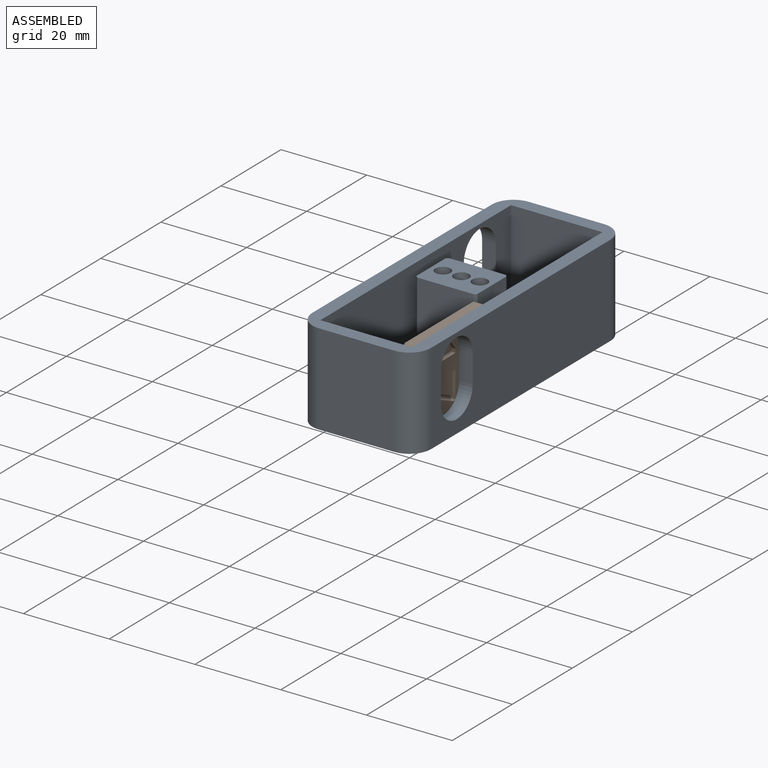
[diagram: assembled view]
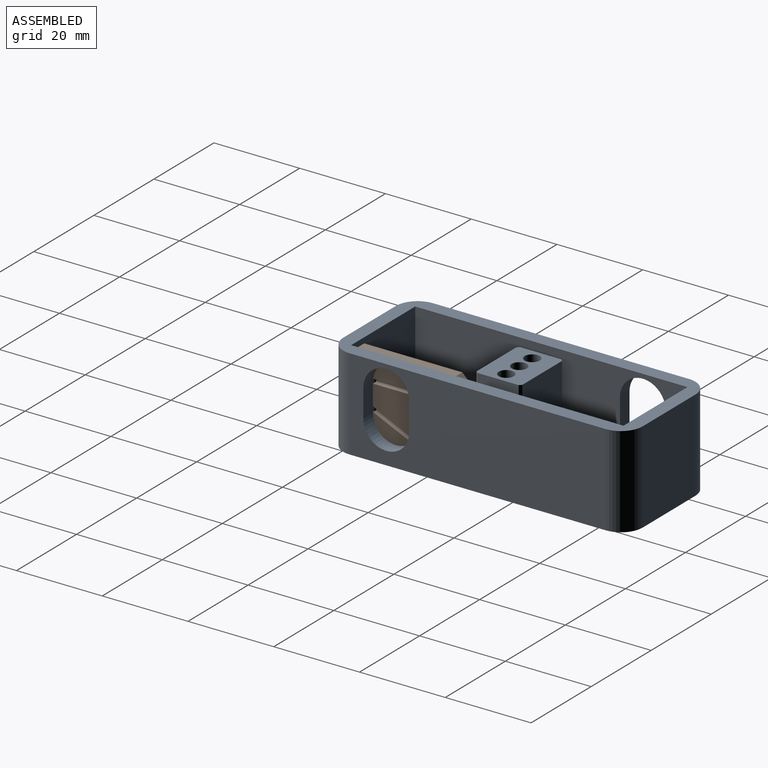
[diagram: assembled view, second angle]
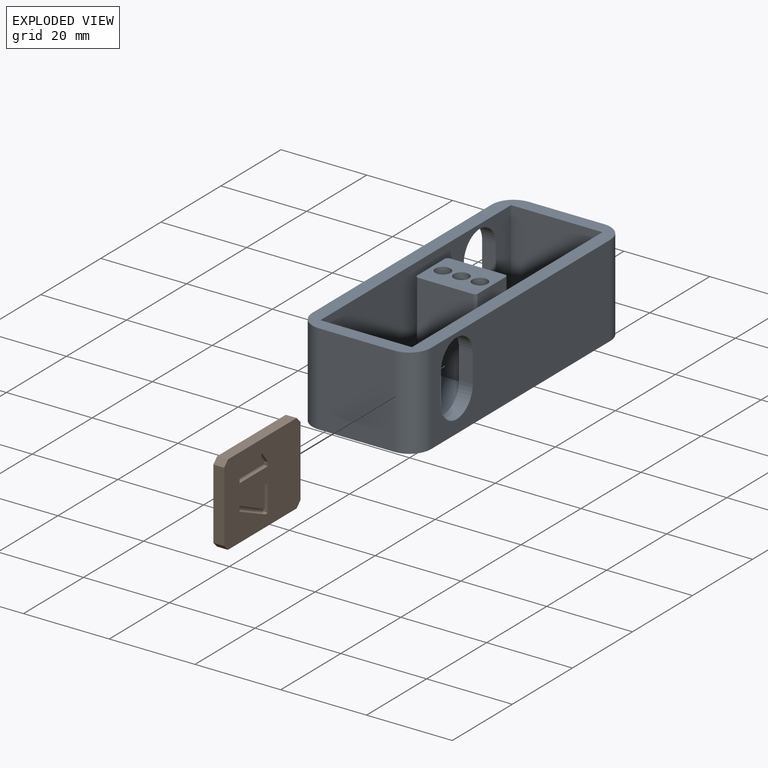
[diagram: exploded view]
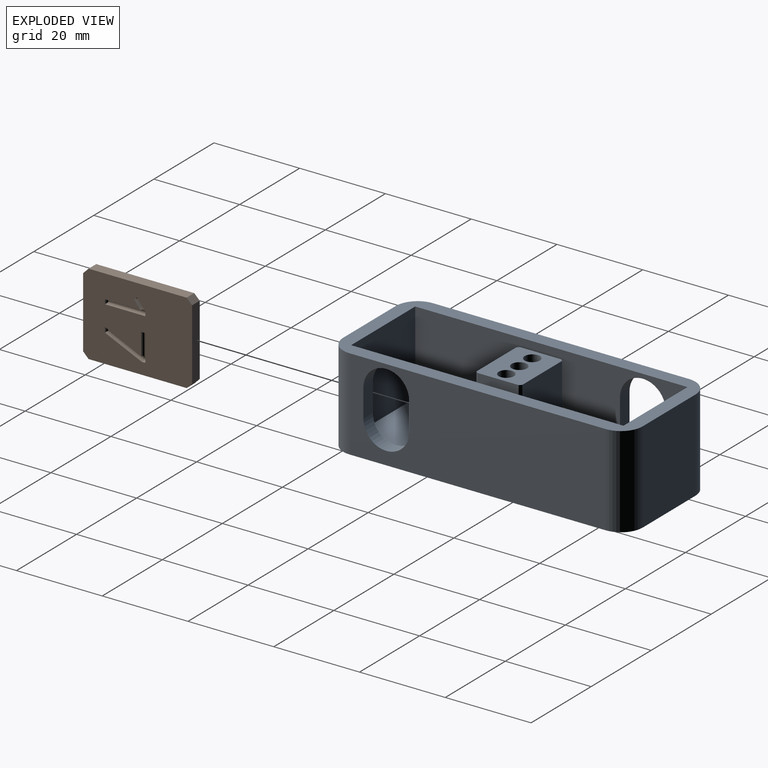
[diagram: exploded view, second angle]
ASSEMBLY  parts=2 mates=3
PART A: 38 faces, bbox 69.9x27.7x21.3 mm
  f0: cylinder r=1.78mm len=6.1mm, axis (0,0,1), area 68.1mm2, adj f17,f33
  f1: cylinder r=1.78mm len=6.1mm, axis (0,0,1), area 68.1mm2, adj f17,f32
  f2: plane 59.69x21.34mm, normal (0,1,0), area 1113.7mm2, adj f8,f11,f20,f21,f23,f26,f27,f28
  f3: plane 63.5x19.3mm, normal (0,-1,0), area 1066mm2, adj f9,f10,f11,f12,f20,f21,f27,f28
  f4: plane 59.69x21.34mm, normal (0,-1,0), area 1113.7mm2, adj f8,f11,f18,f19,f24,f25,f29,f30
  f5: plane 63.5x19.3mm, normal (0,1,0), area 1066mm2, adj f9,f10,f11,f12,f18,f19,f29,f30
  f6: plane 21.34x17.53mm, normal (-1,0,0), area 373.9mm2, adj f8,f11,f23,f24
  f7: plane 21.34x17.53mm, normal (1,0,0), area 373.9mm2, adj f8,f11,f25,f26
  f8: plane 69.85x27.69mm, normal (0,0,-1), area 1895.3mm2, adj f2,f4,f6,f7,f23,f24,f25,f26
  f9: plane 21.34x19.3mm, normal (1,0,0), area 411.9mm2, adj f3,f5,f11,f12
  f10: plane 21.34x19.3mm, normal (-1,0,0), area 411.9mm2, adj f3,f5,f11,f12
  f11: plane 69.85x27.69mm, normal (0,0,1), area 556.9mm2, adj f2,f3,f4,f5,f6,f7,f9,f10
  f12: plane 63.5x21.34mm, normal (0,0,1), area 1203.6mm2, adj f3,f5,f9,f10,f13,f14,f15,f16
  f13: plane 19.3x9.65mm, normal (0,1,0), area 186.3mm2, adj f12,f17,f36,f37
  f14: plane 19.3x13.21mm, normal (-1,0,0), area 255mm2, adj f12,f17,f34,f36
  f15: plane 19.3x9.65mm, normal (0,-1,0), area 186.3mm2, adj f12,f17,f34,f35
  f16: plane 19.3x13.21mm, normal (1,0,0), area 255mm2, adj f12,f17,f35,f37
  f17: plane 14.22x10.67mm, normal (0,0,1), area 121.4mm2, adj f0,f1,f13,f14,f15,f16,f22,f34
  f18: plane 6.6x3.18mm, normal (1,0,0), area 21mm2, adj f4,f5,f29,f30
  f19: plane 6.6x3.18mm, normal (-1,0,0), area 21mm2, adj f4,f5,f29,f30
  f20: plane 6.6x3.18mm, normal (-1,0,0), area 21mm2, adj f2,f3,f27,f28
  f21: plane 6.6x3.18mm, normal (1,0,0), area 21mm2, adj f2,f3,f27,f28
  f22: cylinder r=1.78mm len=20.83mm, axis (0,0,1), area 232.7mm2, adj f17,f31
  f23: cylinder r=5.08mm len=21.34mm, axis (0,0,1), area 170.3mm2, adj f2,f6,f8,f11
  f24: cylinder r=5.08mm len=21.34mm, axis (0,0,-1), area 170.3mm2, adj f4,f6,f8,f11
  f25: cylinder r=5.08mm len=21.34mm, axis (0,0,1), area 170.3mm2, adj f4,f7,f8,f11
  f26: cylinder r=5.08mm len=21.34mm, axis (0,0,-1), area 170.3mm2, adj f2,f7,f8,f11
  f27: cylinder r=5.33mm len=10.67mm, axis (0,-1,0), area 53.2mm2, adj f2,f3,f20,f21
  f28: cylinder r=5.33mm len=10.67mm, axis (0,-1,0), area 53.2mm2, adj f2,f3,f20,f21
  f29: cylinder r=5.33mm len=10.67mm, axis (0,1,0), area 53.2mm2, adj f4,f5,f18,f19
  f30: cylinder r=5.33mm len=10.67mm, axis (0,1,0), area 53.2mm2, adj f4,f5,f18,f19
  f31: torus R=2.29mm, axis (0,0,1), area 9.8mm2, adj f8,f22
  f32: plane 3.56x3.56mm, normal (0,0,1), area 9.9mm2, adj f1
  f33: plane 3.56x3.56mm, normal (0,0,1), area 9.9mm2, adj f0
  f34: plane 19.3x0.51mm, normal (-0.71,-0.71,0), area 13.9mm2, adj f12,f14,f15,f17
  f35: plane 19.3x0.51mm, normal (0.71,-0.71,0), area 13.9mm2, adj f12,f15,f16,f17
  f36: plane 19.3x0.51mm, normal (-0.71,0.71,0), area 13.9mm2, adj f12,f13,f14,f17
  f37: plane 19.3x0.51mm, normal (0.71,0.71,0), area 13.9mm2, adj f12,f13,f16,f17
PART B: 86 faces, bbox 19.1x25.4x2.5 mm
  f0: plane 1.32x1.07mm, normal (0,0,-1), area 0.1mm2, adj f57,f59,f60,f63
  f1: plane 25.4x19.05mm, normal (0,0,1), area 461mm2, adj f3,f4,f5,f6,f25,f26,f27,f28
  f2: plane 25.4x19.05mm, normal (0,0,-1), area 452.6mm2, adj f3,f4,f5,f6,f7,f8,f9,f10
  f3: plane 16.51x2.54mm, normal (0,-1,0), area 41.9mm2, adj f1,f2,f46,f49
  f4: plane 22.86x2.54mm, normal (-1,0,0), area 58.1mm2, adj f1,f2,f46,f47
  f5: plane 16.51x2.54mm, normal (0,1,0), area 41.9mm2, adj f1,f2,f47,f48
  f6: plane 22.86x2.54mm, normal (1,0,0), area 58.1mm2, adj f1,f2,f48,f49
  f7: plane 8.46x3.91mm, normal (0.91,0.42,0), area 3.1mm2, adj f2,f8,f13,f52
  f8: plane 1.19x0.33mm, normal (0,-1,0), area 0.4mm2, adj f2,f7,f9,f50
  f9: plane 8.58x3.86mm, normal (-0.91,-0.41,0), area 3.1mm2, adj f2,f8,f10,f51
  f10: plane 0.86x0.33mm, normal (-1,0,0), area 0.3mm2, adj f2,f9,f11,f53
  f11: plane 6.28x0.33mm, normal (0,1,0), area 2.1mm2, adj f2,f10,f12,f55
  f12: plane 0.99x0.33mm, normal (1,0,0), area 0.3mm2, adj f2,f11,f13,f56
  f13: plane 5.15x0.33mm, normal (0,-1,0), area 1.7mm2, adj f2,f7,f12,f54
  f14: plane 8.58x5.42mm, normal (0,0,-1), area 2.2mm2, adj f50,f51,f52,f53,f54,f55,f56
  f15: plane 1.05x0.33mm, normal (0,-1,0), area 0.3mm2, adj f2,f16,f23,f58
  f16: plane 9.44x0.33mm, normal (-1,0,0), area 3.1mm2, adj f2,f15,f17,f61
  f17: plane 0.9x0.33mm, normal (0,1,0), area 0.3mm2, adj f2,f16,f18,f64
  f18: plane 2.5x1.93mm, normal (0.61,0.79,0), area 1mm2, adj f2,f17,f19,f60
  f19: plane 0.74x0.57mm, normal (0.79,-0.61,0), area 0.3mm2, adj f2,f18,f20,f57
  f20: extruded ~1.54x1.26mm, area 0.7mm2, adj f2,f19,f21,f59
  f21: extruded ~0.33x0.3mm, area 0.1mm2, adj f2,f20,f22,f63
  f22: extruded ~1.59x0.33mm, area 0.5mm2, adj f2,f21,f23,f65
  f23: plane 6.73x0.33mm, normal (1,0,0), area 2.2mm2, adj f2,f15,f22,f62
  f24: plane 8.58x0.18mm, normal (0,0,-1), area 1.5mm2, adj f58,f61,f62,f64,f65
  f25: plane 6.21x0.08mm, normal (0,1,0), area 0.5mm2, adj f1,f26,f44,f81
  f26: plane 0.99x0.08mm, normal (-1,0,0), area 0.1mm2, adj f1,f25,f27,f79
  f27: plane 4.86x0.08mm, normal (0,-1,0), area 0.4mm2, adj f1,f26,f28,f77
  f28: plane 0.08x0.05mm, normal (-1,0,0), area 0mm2, adj f1,f27,f29,f75
  f29: plane 2.07x2.02mm, normal (-0.7,0.71,0), area 0.2mm2, adj f1,f28,f30,f73
  f30: extruded ~2.22x1.89mm, area 0.2mm2, adj f1,f29,f31,f71
  f31: extruded ~1.78x0.5mm, area 0.1mm2, adj f1,f30,f32,f69
  f32: extruded ~1.83x0.76mm, area 0.2mm2, adj f1,f31,f33,f67
  f33: extruded ~2.09x0.68mm, area 0.2mm2, adj f1,f32,f34,f66
  f34: extruded ~2.84x1.09mm, area 0.2mm2, adj f1,f33,f35,f68
  f35: plane 0.73x0.57mm, normal (0.79,0.61,0), area 0.1mm2, adj f1,f34,f36,f70
  f36: extruded ~1.17x0.71mm, area 0.1mm2, adj f1,f35,f37,f72
  f37: extruded ~1.11x0.19mm, area 0.1mm2, adj f1,f36,f38,f74
  f38: extruded ~1.27x0.44mm, area 0.1mm2, adj f1,f37,f39,f76
  f39: extruded ~1.2x0.46mm, area 0.1mm2, adj f1,f38,f40,f78
  f40: extruded ~1x0.18mm, area 0.1mm2, adj f1,f39,f41,f80
  f41: extruded ~0.96x0.54mm, area 0.1mm2, adj f1,f40,f42,f82
  f42: extruded ~1.64x1.5mm, area 0.2mm2, adj f1,f41,f43,f84
  f43: plane 2.5x2.49mm, normal (0.71,-0.71,0), area 0.3mm2, adj f1,f42,f44,f85
  f44: plane 0.92x0.08mm, normal (1,0,0), area 0.1mm2, adj f1,f25,f43,f83
  f45: plane 8.72x5.34mm, normal (0,0,1), area 2.2mm2, adj f66,f67,f68,f69,f70,f71,f72,f73
  f46: plane 2.54x1.27mm, normal (-0.71,-0.71,0), area 4.6mm2, adj f1,f2,f3,f4
  f47: plane 2.54x1.27mm, normal (-0.71,0.71,0), area 4.6mm2, adj f1,f2,f4,f5
  f48: plane 2.54x1.27mm, normal (0.71,0.71,0), area 4.6mm2, adj f1,f2,f5,f6
  f49: plane 2.54x1.27mm, normal (0.71,-0.71,0), area 4.6mm2, adj f1,f2,f3,f6
  f50: cylinder r=0.43mm len=1.19mm, axis (1,0,0), area 0.5mm2, adj f8,f14,f51,f52
  f51: cylinder r=0.43mm len=8.76mm, axis (0.41,-0.91,0), area 6.3mm2, adj f9,f14,f50,f53
  f52: cylinder r=0.43mm len=9.25mm, axis (-0.42,0.91,0), area 6.3mm2, adj f7,f14,f50,f54
  f53: cylinder r=0.43mm len=0.86mm, axis (0,-1,0), area 0.4mm2, adj f10,f14,f51,f55
  f54: cylinder r=0.43mm len=5.82mm, axis (1,0,0), area 3.6mm2, adj f13,f14,f52,f56
  f55: cylinder r=0.43mm len=6.28mm, axis (-1,0,0), area 4mm2, adj f11,f14,f53,f56
  f56: cylinder r=0.43mm len=0.99mm, axis (0,1,0), area 0.5mm2, adj f12,f14,f54,f55
  f57: cylinder r=0.43mm len=1mm, axis (0.61,0.79,0), area 0.4mm2, adj f0,f19,f59,f60
  f58: cylinder r=0.43mm len=1.05mm, axis (1,0,0), area 0.4mm2, adj f15,f24,f61,f62
  f59: bspline ~2.07x1.8mm, area 1.2mm2, adj f0,f20,f57,f63
  f60: cylinder r=0.43mm len=2.76mm, axis (-0.79,0.61,0), area 1.9mm2, adj f0,f18,f57,f63,f64
  f61: cylinder r=0.43mm len=9.44mm, axis (0,-1,0), area 6.1mm2, adj f16,f24,f58,f64
  f62: cylinder r=0.43mm len=6.73mm, axis (0,1,0), area 4.4mm2, adj f23,f24,f58,f65
  f63: bspline ~1.52x1.52mm, area 0.5mm2, adj f0,f21,f59,f60,f64,f65
  f64: cylinder r=0.43mm len=0.9mm, axis (-1,0,0), area 0.4mm2, adj f17,f24,f60,f61,f63,f65
  f65: bspline ~3.24x0.57mm, area 1.3mm2, adj f22,f24,f62,f63,f64
  f66: bspline ~3.22x1.28mm, area 1.4mm2, adj f33,f45,f67,f68
  f67: bspline ~2.54x1.16mm, area 1.3mm2, adj f32,f45,f66,f69
  f68: bspline ~3.62x1.55mm, area 1.9mm2, adj f34,f45,f66,f70
  f69: bspline ~2.49x1.07mm, area 1.2mm2, adj f31,f45,f67,f71
  f70: cylinder r=0.43mm len=1mm, axis (0.61,-0.79,0), area 0.4mm2, adj f35,f45,f68,f72
  f71: bspline ~3.48x3mm, area 2mm2, adj f30,f45,f69,f73
  f72: bspline ~1.84x1.31mm, area 0.8mm2, adj f36,f45,f70,f74
  f73: cylinder r=0.43mm len=2.5mm, axis (0.71,0.7,0), area 2mm2, adj f29,f45,f71,f75
  f74: bspline ~1.69x0.7mm, area 0.8mm2, adj f37,f45,f72,f76
  f75: cylinder r=0.43mm len=0.67mm, axis (0,1,0), area 0.2mm2, adj f28,f45,f73,f77
  f76: bspline ~2.3x1.17mm, area 1mm2, adj f38,f45,f74,f78
  f77: cylinder r=0.43mm len=5.29mm, axis (-1,0,0), area 3.3mm2, adj f27,f45,f75,f79
  f78: bspline ~1.85x1.15mm, area 1mm2, adj f39,f45,f76,f80
  f79: cylinder r=0.43mm len=0.99mm, axis (0,1,0), area 0.5mm2, adj f26,f45,f77,f81
  f80: bspline ~1.41x0.63mm, area 0.7mm2, adj f40,f45,f78,f82
  f81: cylinder r=0.43mm len=6.21mm, axis (1,0,0), area 3.9mm2, adj f25,f45,f79,f83
  f82: bspline ~1.6x1.16mm, area 0.8mm2, adj f41,f45,f80,f84
  f83: cylinder r=0.43mm len=0.92mm, axis (0,-1,0), area 0.4mm2, adj f44,f45,f81,f85
  f84: bspline ~2.56x2.4mm, area 1.5mm2, adj f42,f45,f82,f85
  f85: cylinder r=0.43mm len=2.8mm, axis (-0.71,-0.71,0), area 2.3mm2, adj f43,f45,f83,f84
PLACE A rot(axis=(0,0,1),90deg) t=(-0.58,1.63,12.25)mm
PLACE B rot(axis=(0.71,0,-0.71),180deg) t=(-0.58,42.27,58.73)mm
MATE planar B.f2 <-> A.f5  axis (1,0,0) through (-0.58,14.44,23.84)mm
MATE planar B.f5 <-> A.f9  axis (0,-1,0) through (-1.85,1.63,23.81)mm
MATE planar B.f6 <-> A.f22  axis (0,0,-1) through (-1.85,14.33,14.28)mm
